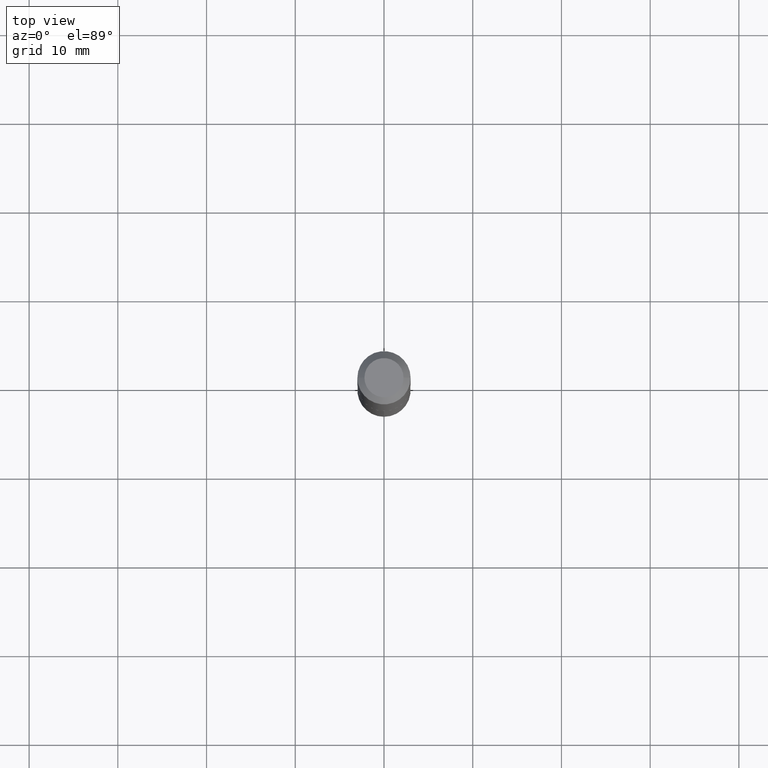
[diagram: clean part render]
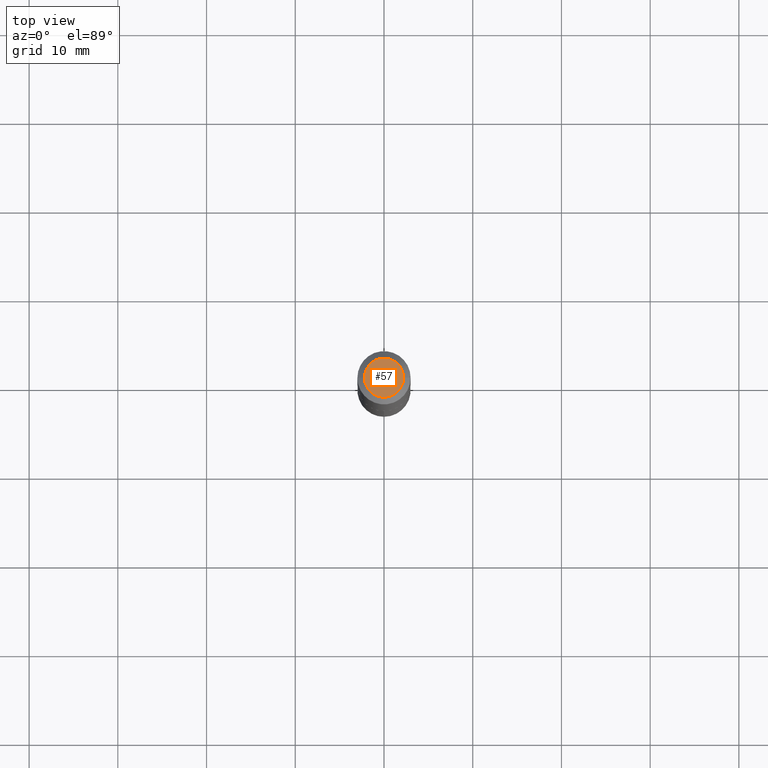
[diagram: same view with one face highlighted and labeled with its STEP entity id]
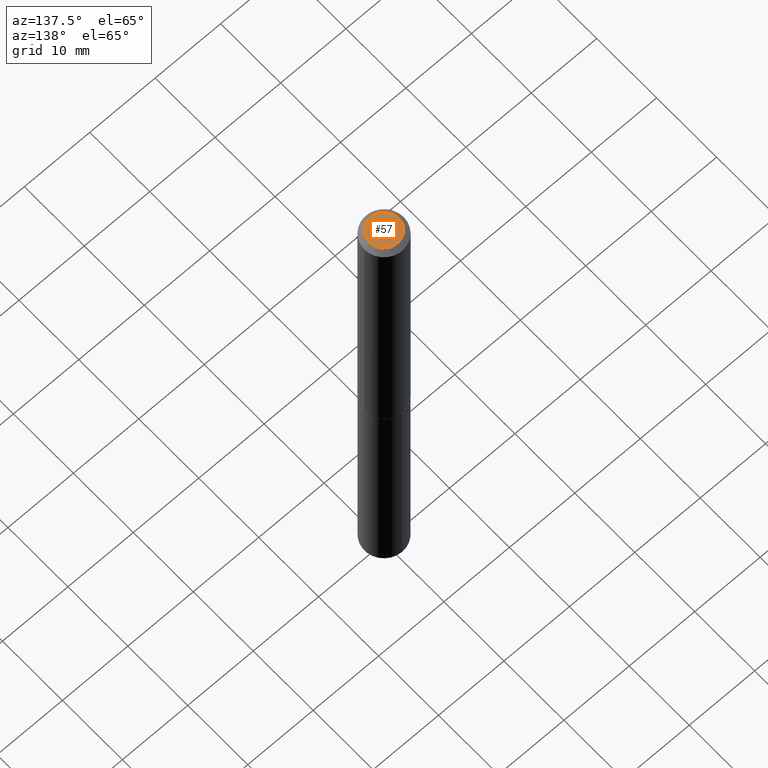
[diagram: same view with one face highlighted and labeled with its STEP entity id]
A machine part, top view. The second image highlights one B-rep face of the part: STEP entity #57.
A second angle (auxiliary view) of the same face is appended — the face is thin or edge-on in the first view.
In plain terms, the highlighted planar face has unit normal (0, -0, -1).
Its self-contained STEP definition (entity closure, byte-faithful):
#3 = DIRECTION ( 'NONE',  ( 2.438088387897960049E-29, -3.491481338843145188E-15, -1.000000000000000000 ) ) ;
#25 = DIRECTION ( 'NONE',  ( -2.445468806185136597E-29, 3.491481338843145583E-15, 1.000000000000000000 ) ) ;
#57 = ADVANCED_FACE ( 'NONE', ( #123 ), #303, .F. ) ;
#63 = CARTESIAN_POINT ( 'NONE',  ( 8.253766764526101525E-46, -1.178419146489205654E-31, -3.375126578450104991E-17 ) ) ;
#70 = DIRECTION ( 'NONE',  ( -1.000000000000000000, 6.982962677686265922E-15, -4.876176775795935793E-29 ) ) ;
#100 = DIRECTION ( 'NONE',  ( -2.445468806185136597E-29, 3.491481338843145583E-15, 1.000000000000000000 ) ) ;
#117 = VERTEX_POINT ( 'NONE', #290 ) ;
#123 = FACE_OUTER_BOUND ( 'NONE', #381, .T. ) ;
#125 = CARTESIAN_POINT ( 'NONE',  ( 0.08684999999999999665, -7.575839282410623033E-16, -3.375126578449627977E-17 ) ) ;
#162 = AXIS2_PLACEMENT_3D ( 'NONE', #311, #3, #70 ) ;
#165 = EDGE_CURVE ( 'NONE', #117, #332, #250, .T. ) ;
#181 = DIRECTION ( 'NONE',  ( 1.000000000000000000, -6.982962677686266711E-15, 4.875959881687004012E-29 ) ) ;
#185 = CARTESIAN_POINT ( 'NONE',  ( 8.253766764526101525E-46, -1.178419146489205654E-31, -3.375126578450104991E-17 ) ) ;
#199 = DIRECTION ( 'NONE',  ( 1.000000000000000000, -6.982962677686266711E-15, 4.875959881687004012E-29 ) ) ;
#234 = AXIS2_PLACEMENT_3D ( 'NONE', #63, #100, #199 ) ;
#243 = ORIENTED_EDGE ( 'NONE', *, *, #263, .T. ) ;
#245 = CIRCLE ( 'NONE', #315, 0.08684999999999999665 ) ;
#250 = CIRCLE ( 'NONE', #234, 0.08684999999999999665 ) ;
#263 = EDGE_CURVE ( 'NONE', #332, #117, #245, .T. ) ;
#290 = CARTESIAN_POINT ( 'NONE',  ( -0.08684999999999999665, 6.610247044764755977E-16, -3.375126578450548109E-17 ) ) ;
#298 = ORIENTED_EDGE ( 'NONE', *, *, #165, .T. ) ;
#303 = PLANE ( 'NONE',  #162 ) ;
#311 = CARTESIAN_POINT ( 'NONE',  ( 4.126883382263050762E-46, -5.892095732446028268E-32, -1.687563289225052496E-17 ) ) ;
#315 = AXIS2_PLACEMENT_3D ( 'NONE', #185, #25, #181 ) ;
#332 = VERTEX_POINT ( 'NONE', #125 ) ;
#381 = EDGE_LOOP ( 'NONE', ( #298, #243 ) ) ;